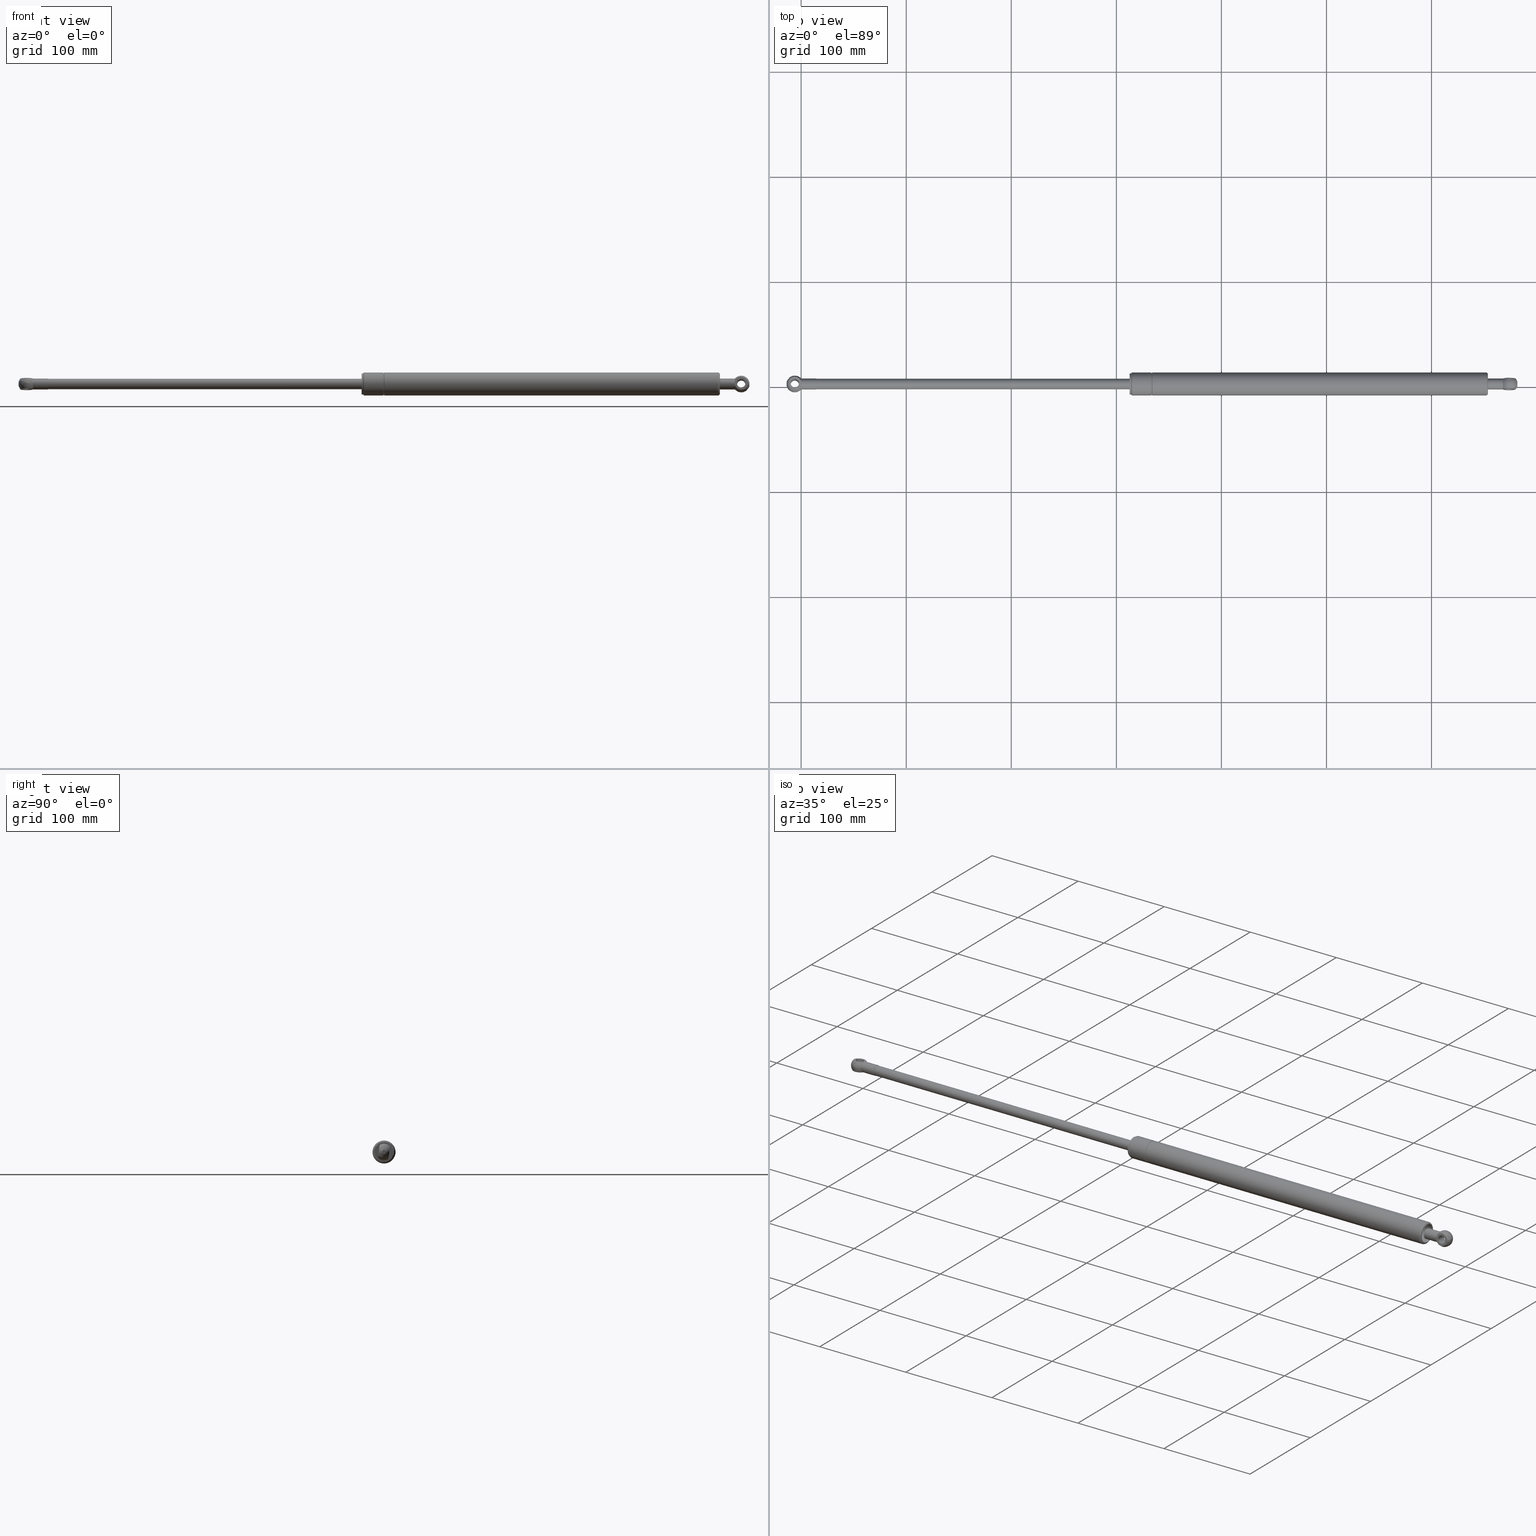
[diagram: canonical four-view strip — front | top / right | iso, engineering-drawing reading convention]
A machine part, canonical four-view strip (front | top / right | iso — engineering-drawing reading convention). The complete STEP part file that produces these views, byte-faithful:
ISO-10303-21;
HEADER;
/* Generated by software containing ST-Developer
 * from STEP Tools, Inc. (www.steptools.com) 
 */

FILE_DESCRIPTION(
/* description */ (''),
/* implementation_level */ '2;1');

FILE_NAME(
/* name */ '\\\\SYNOLOGYNAS\\web\\db2\\SB-680-H\\\X2\B3C4BA74\X0\\\DR_
SB-680-H.stp',
/* time_stamp */ '2023-11-29T15:08:19+09:00',
/* author */ ('user'),
/* organization */ (''),
/* preprocessor_version */ 'ST-DEVELOPER v15.6',
/* originating_system */ 'Autodesk Inventor 2015',
/* authorisation */ '');

FILE_SCHEMA (('AUTOMOTIVE_DESIGN { 1 0 10303 214 3 1 1 }'));
ENDSEC;

DATA;
#10=MECHANICAL_DESIGN_GEOMETRIC_PRESENTATION_REPRESENTATION('',(#42,#45,
#43,#44,#46,#47,#48,#49),#798);
#11=ITEM_DEFINED_TRANSFORMATION($,$,#427,#501);
#12=ITEM_DEFINED_TRANSFORMATION($,$,#451,#502);
#13=ITEM_DEFINED_TRANSFORMATION($,$,#475,#503);
#14=ITEM_DEFINED_TRANSFORMATION($,$,#427,#504);
#15=ITEM_DEFINED_TRANSFORMATION($,$,#487,#505);
#16=(
REPRESENTATION_RELATIONSHIP($,$,#820,#824)
REPRESENTATION_RELATIONSHIP_WITH_TRANSFORMATION(#11)
SHAPE_REPRESENTATION_RELATIONSHIP()
);
#17=(
REPRESENTATION_RELATIONSHIP($,$,#821,#824)
REPRESENTATION_RELATIONSHIP_WITH_TRANSFORMATION(#12)
SHAPE_REPRESENTATION_RELATIONSHIP()
);
#18=(
REPRESENTATION_RELATIONSHIP($,$,#822,#824)
REPRESENTATION_RELATIONSHIP_WITH_TRANSFORMATION(#13)
SHAPE_REPRESENTATION_RELATIONSHIP()
);
#19=(
REPRESENTATION_RELATIONSHIP($,$,#820,#824)
REPRESENTATION_RELATIONSHIP_WITH_TRANSFORMATION(#14)
SHAPE_REPRESENTATION_RELATIONSHIP()
);
#20=(
REPRESENTATION_RELATIONSHIP($,$,#823,#824)
REPRESENTATION_RELATIONSHIP_WITH_TRANSFORMATION(#15)
SHAPE_REPRESENTATION_RELATIONSHIP()
);
#21=CONTEXT_DEPENDENT_SHAPE_REPRESENTATION(#16,#815);
#22=CONTEXT_DEPENDENT_SHAPE_REPRESENTATION(#17,#816);
#23=CONTEXT_DEPENDENT_SHAPE_REPRESENTATION(#18,#817);
#24=CONTEXT_DEPENDENT_SHAPE_REPRESENTATION(#19,#818);
#25=CONTEXT_DEPENDENT_SHAPE_REPRESENTATION(#20,#819);
#26=NEXT_ASSEMBLY_USAGE_OCCURRENCE('DR_SB-680-H HOLE:1',$,$,#830,#826,$);
#27=NEXT_ASSEMBLY_USAGE_OCCURRENCE('DR_SB-680-BASE:1',$,$,#830,#827,$);
#28=NEXT_ASSEMBLY_USAGE_OCCURRENCE('DR_SB-680-SUPPORT:1',$,$,#830,#828,
$);
#29=NEXT_ASSEMBLY_USAGE_OCCURRENCE('DR_SB-680-H HOLE:2',$,$,#830,#826,$);
#30=NEXT_ASSEMBLY_USAGE_OCCURRENCE('DR_SB-680-RING:1',$,$,#830,#829,$);
#31=TOROIDAL_SURFACE('',#459,11.,0.5);
#32=TOROIDAL_SURFACE('',#462,11.,1.);
#33=TOROIDAL_SURFACE('',#467,9.00000000000001,2.);
#34=SHAPE_REPRESENTATION_RELATIONSHIP('SRR','None',#820,#38);
#35=SHAPE_REPRESENTATION_RELATIONSHIP('SRR','None',#821,#39);
#36=SHAPE_REPRESENTATION_RELATIONSHIP('SRR','None',#822,#40);
#37=SHAPE_REPRESENTATION_RELATIONSHIP('SRR','None',#823,#41);
#38=ADVANCED_BREP_SHAPE_REPRESENTATION($,(#50),#793);
#39=ADVANCED_BREP_SHAPE_REPRESENTATION($,(#51,#52),#794);
#40=ADVANCED_BREP_SHAPE_REPRESENTATION($,(#53),#795);
#41=ADVANCED_BREP_SHAPE_REPRESENTATION($,(#54),#796);
#42=STYLED_ITEM('',(#849),#50);
#43=STYLED_ITEM('',(#850),#51);
#44=STYLED_ITEM('',(#850),#52);
#45=STYLED_ITEM('',(#852),#413);
#46=STYLED_ITEM('',(#851),#53);
#47=STYLED_ITEM('',(#850),#417);
#48=STYLED_ITEM('',(#850),#418);
#49=STYLED_ITEM('',(#851),#54);
#50=MANIFOLD_SOLID_BREP('\X2\C194B9ACB4DC\X0\1',#422);
#51=MANIFOLD_SOLID_BREP('\X2\C194B9ACB4DC\X0\1',#423);
#52=MANIFOLD_SOLID_BREP('\X2\C194B9ACB4DC\X0\1',#424);
#53=MANIFOLD_SOLID_BREP('\X2\C194B9ACB4DC\X0\1',#425);
#54=MANIFOLD_SOLID_BREP('\X2\C194B9ACB4DC\X0\1',#426);
#55=SPHERICAL_SURFACE('',#446,8.);
#56=B_SPLINE_CURVE_WITH_KNOTS('',3,(#677,#678,#679,#680,#681,#682),
 .UNSPECIFIED.,.F.,.F.,(4,2,4),(2.41667495412591,2.57738882372164,2.73810269331737),
 .UNSPECIFIED.);
#57=B_SPLINE_CURVE_WITH_KNOTS('',3,(#687,#688,#689,#690,#691,#692),
 .UNSPECIFIED.,.F.,.F.,(4,2,4),(0.698415738311486,0.859129607907215,1.01984347750294),
 .UNSPECIFIED.);
#58=PLANE('',#432);
#59=PLANE('',#445);
#60=PLANE('',#449);
#61=PLANE('',#450);
#62=PLANE('',#455);
#63=PLANE('',#458);
#64=PLANE('',#474);
#65=PLANE('',#481);
#66=PLANE('',#482);
#67=PLANE('',#486);
#68=PLANE('',#491);
#69=PLANE('',#495);
#70=PLANE('',#499);
#71=FACE_BOUND('',#150,.T.);
#72=FACE_BOUND('',#155,.T.);
#73=FACE_BOUND('',#157,.T.);
#74=FACE_BOUND('',#159,.T.);
#75=FACE_BOUND('',#160,.T.);
#76=FACE_BOUND('',#161,.T.);
#77=FACE_BOUND('',#163,.T.);
#78=FACE_BOUND('',#165,.T.);
#79=FACE_BOUND('',#167,.T.);
#80=FACE_BOUND('',#170,.T.);
#81=FACE_BOUND('',#173,.T.);
#82=FACE_BOUND('',#175,.T.);
#83=FACE_BOUND('',#177,.T.);
#84=FACE_BOUND('',#179,.T.);
#85=FACE_BOUND('',#181,.T.);
#86=FACE_BOUND('',#183,.T.);
#87=FACE_BOUND('',#185,.T.);
#88=FACE_BOUND('',#187,.T.);
#89=FACE_BOUND('',#189,.T.);
#90=FACE_BOUND('',#191,.T.);
#91=FACE_BOUND('',#195,.T.);
#92=FACE_BOUND('',#197,.T.);
#93=FACE_BOUND('',#199,.T.);
#94=FACE_BOUND('',#201,.T.);
#95=FACE_BOUND('',#203,.T.);
#96=FACE_BOUND('',#205,.T.);
#97=FACE_BOUND('',#207,.T.);
#98=FACE_BOUND('',#209,.T.);
#99=CYLINDRICAL_SURFACE('',#430,3.567);
#100=CYLINDRICAL_SURFACE('',#434,6.2449979983984);
#101=CYLINDRICAL_SURFACE('',#436,6.2449979983984);
#102=CYLINDRICAL_SURFACE('',#438,5.25);
#103=CYLINDRICAL_SURFACE('',#442,4.);
#104=CYLINDRICAL_SURFACE('',#456,4.);
#105=CYLINDRICAL_SURFACE('',#465,10.);
#106=CYLINDRICAL_SURFACE('',#470,11.);
#107=CYLINDRICAL_SURFACE('',#471,9.);
#108=CYLINDRICAL_SURFACE('',#473,11.);
#109=CYLINDRICAL_SURFACE('',#479,4.);
#110=CYLINDRICAL_SURFACE('',#484,5.00000000000002);
#111=CYLINDRICAL_SURFACE('',#488,9.);
#112=CYLINDRICAL_SURFACE('',#493,6.5);
#113=CYLINDRICAL_SURFACE('',#497,5.);
#114=FACE_OUTER_BOUND('',#148,.T.);
#115=FACE_OUTER_BOUND('',#149,.T.);
#116=FACE_OUTER_BOUND('',#151,.T.);
#117=FACE_OUTER_BOUND('',#152,.T.);
#118=FACE_OUTER_BOUND('',#153,.T.);
#119=FACE_OUTER_BOUND('',#154,.T.);
#120=FACE_OUTER_BOUND('',#156,.T.);
#121=FACE_OUTER_BOUND('',#158,.T.);
#122=FACE_OUTER_BOUND('',#162,.T.);
#123=FACE_OUTER_BOUND('',#164,.T.);
#124=FACE_OUTER_BOUND('',#166,.T.);
#125=FACE_OUTER_BOUND('',#168,.T.);
#126=FACE_OUTER_BOUND('',#169,.T.);
#127=FACE_OUTER_BOUND('',#171,.T.);
#128=FACE_OUTER_BOUND('',#172,.T.);
#129=FACE_OUTER_BOUND('',#174,.T.);
#130=FACE_OUTER_BOUND('',#176,.T.);
#131=FACE_OUTER_BOUND('',#178,.T.);
#132=FACE_OUTER_BOUND('',#180,.T.);
#133=FACE_OUTER_BOUND('',#182,.T.);
#134=FACE_OUTER_BOUND('',#184,.T.);
#135=FACE_OUTER_BOUND('',#186,.T.);
#136=FACE_OUTER_BOUND('',#188,.T.);
#137=FACE_OUTER_BOUND('',#190,.T.);
#138=FACE_OUTER_BOUND('',#192,.T.);
#139=FACE_OUTER_BOUND('',#193,.T.);
#140=FACE_OUTER_BOUND('',#194,.T.);
#141=FACE_OUTER_BOUND('',#196,.T.);
#142=FACE_OUTER_BOUND('',#198,.T.);
#143=FACE_OUTER_BOUND('',#200,.T.);
#144=FACE_OUTER_BOUND('',#202,.T.);
#145=FACE_OUTER_BOUND('',#204,.T.);
#146=FACE_OUTER_BOUND('',#206,.T.);
#147=FACE_OUTER_BOUND('',#208,.T.);
#148=EDGE_LOOP('',(#312));
#149=EDGE_LOOP('',(#313));
#150=EDGE_LOOP('',(#314));
#151=EDGE_LOOP('',(#315));
#152=EDGE_LOOP('',(#316,#317));
#153=EDGE_LOOP('',(#318,#319));
#154=EDGE_LOOP('',(#320,#321,#322,#323));
#155=EDGE_LOOP('',(#324));
#156=EDGE_LOOP('',(#325));
#157=EDGE_LOOP('',(#326));
#158=EDGE_LOOP('',(#327));
#159=EDGE_LOOP('',(#328));
#160=EDGE_LOOP('',(#329));
#161=EDGE_LOOP('',(#330,#331,#332,#333));
#162=EDGE_LOOP('',(#334,#335));
#163=EDGE_LOOP('',(#336));
#164=EDGE_LOOP('',(#337,#338));
#165=EDGE_LOOP('',(#339));
#166=EDGE_LOOP('',(#340));
#167=EDGE_LOOP('',(#341));
#168=EDGE_LOOP('',(#342));
#169=EDGE_LOOP('',(#343));
#170=EDGE_LOOP('',(#344));
#171=EDGE_LOOP('',(#345));
#172=EDGE_LOOP('',(#346));
#173=EDGE_LOOP('',(#347));
#174=EDGE_LOOP('',(#348));
#175=EDGE_LOOP('',(#349));
#176=EDGE_LOOP('',(#350));
#177=EDGE_LOOP('',(#351));
#178=EDGE_LOOP('',(#352));
#179=EDGE_LOOP('',(#353));
#180=EDGE_LOOP('',(#354));
#181=EDGE_LOOP('',(#355));
#182=EDGE_LOOP('',(#356));
#183=EDGE_LOOP('',(#357));
#184=EDGE_LOOP('',(#358));
#185=EDGE_LOOP('',(#359));
#186=EDGE_LOOP('',(#360));
#187=EDGE_LOOP('',(#361));
#188=EDGE_LOOP('',(#362));
#189=EDGE_LOOP('',(#363));
#190=EDGE_LOOP('',(#364));
#191=EDGE_LOOP('',(#365));
#192=EDGE_LOOP('',(#366));
#193=EDGE_LOOP('',(#367));
#194=EDGE_LOOP('',(#368));
#195=EDGE_LOOP('',(#369));
#196=EDGE_LOOP('',(#370));
#197=EDGE_LOOP('',(#371));
#198=EDGE_LOOP('',(#372));
#199=EDGE_LOOP('',(#373));
#200=EDGE_LOOP('',(#374));
#201=EDGE_LOOP('',(#375));
#202=EDGE_LOOP('',(#376));
#203=EDGE_LOOP('',(#377));
#204=EDGE_LOOP('',(#378));
#205=EDGE_LOOP('',(#379));
#206=EDGE_LOOP('',(#380));
#207=EDGE_LOOP('',(#381));
#208=EDGE_LOOP('',(#382));
#209=EDGE_LOOP('',(#383));
#210=CIRCLE('',#429,3.567);
#211=CIRCLE('',#431,3.567);
#212=CIRCLE('',#433,1.98431348329845);
#213=CIRCLE('',#435,6.2449979983984);
#214=CIRCLE('',#437,6.2449979983984);
#215=CIRCLE('',#439,5.25);
#216=CIRCLE('',#440,5.25);
#217=CIRCLE('',#441,5.25);
#218=CIRCLE('',#443,4.);
#219=CIRCLE('',#444,4.);
#220=CIRCLE('',#447,6.2449979983984);
#221=CIRCLE('',#448,6.2449979983984);
#222=CIRCLE('',#453,3.);
#223=CIRCLE('',#454,4.);
#224=CIRCLE('',#457,4.);
#225=CIRCLE('',#460,11.);
#226=CIRCLE('',#461,11.);
#227=CIRCLE('',#463,11.);
#228=CIRCLE('',#464,10.);
#229=CIRCLE('',#466,10.);
#230=CIRCLE('',#468,9.);
#231=CIRCLE('',#469,11.);
#232=CIRCLE('',#472,9.);
#233=CIRCLE('',#477,4.);
#234=CIRCLE('',#478,3.);
#235=CIRCLE('',#480,4.);
#236=CIRCLE('',#483,5.);
#237=CIRCLE('',#485,5.00000000000003);
#238=CIRCLE('',#489,9.);
#239=CIRCLE('',#490,9.);
#240=CIRCLE('',#492,6.5);
#241=CIRCLE('',#494,6.5);
#242=CIRCLE('',#496,5.);
#243=CIRCLE('',#498,5.);
#244=VERTEX_POINT('',#666);
#245=VERTEX_POINT('',#669);
#246=VERTEX_POINT('',#672);
#247=VERTEX_POINT('',#675);
#248=VERTEX_POINT('',#676);
#249=VERTEX_POINT('',#685);
#250=VERTEX_POINT('',#686);
#251=VERTEX_POINT('',#697);
#252=VERTEX_POINT('',#700);
#253=VERTEX_POINT('',#702);
#254=VERTEX_POINT('',#712);
#255=VERTEX_POINT('',#714);
#256=VERTEX_POINT('',#718);
#257=VERTEX_POINT('',#722);
#258=VERTEX_POINT('',#724);
#259=VERTEX_POINT('',#727);
#260=VERTEX_POINT('',#729);
#261=VERTEX_POINT('',#732);
#262=VERTEX_POINT('',#735);
#263=VERTEX_POINT('',#737);
#264=VERTEX_POINT('',#741);
#265=VERTEX_POINT('',#747);
#266=VERTEX_POINT('',#749);
#267=VERTEX_POINT('',#752);
#268=VERTEX_POINT('',#756);
#269=VERTEX_POINT('',#759);
#270=VERTEX_POINT('',#764);
#271=VERTEX_POINT('',#766);
#272=VERTEX_POINT('',#769);
#273=VERTEX_POINT('',#772);
#274=VERTEX_POINT('',#775);
#275=VERTEX_POINT('',#778);
#276=EDGE_CURVE('',#244,#244,#210,.T.);
#277=EDGE_CURVE('',#245,#245,#211,.T.);
#278=EDGE_CURVE('',#246,#246,#212,.T.);
#279=EDGE_CURVE('',#247,#248,#56,.T.);
#280=EDGE_CURVE('',#247,#248,#213,.T.);
#281=EDGE_CURVE('',#249,#250,#57,.T.);
#282=EDGE_CURVE('',#249,#250,#214,.T.);
#283=EDGE_CURVE('',#249,#248,#215,.T.);
#284=EDGE_CURVE('',#247,#250,#216,.T.);
#285=EDGE_CURVE('',#251,#251,#217,.T.);
#286=EDGE_CURVE('',#252,#252,#218,.T.);
#287=EDGE_CURVE('',#253,#253,#219,.T.);
#288=EDGE_CURVE('',#248,#247,#220,.T.);
#289=EDGE_CURVE('',#250,#249,#221,.T.);
#290=EDGE_CURVE('',#254,#254,#222,.T.);
#291=EDGE_CURVE('',#255,#255,#223,.T.);
#292=EDGE_CURVE('',#256,#256,#224,.T.);
#293=EDGE_CURVE('',#257,#257,#225,.T.);
#294=EDGE_CURVE('',#258,#258,#226,.T.);
#295=EDGE_CURVE('',#259,#259,#227,.T.);
#296=EDGE_CURVE('',#260,#260,#228,.T.);
#297=EDGE_CURVE('',#261,#261,#229,.T.);
#298=EDGE_CURVE('',#262,#262,#230,.T.);
#299=EDGE_CURVE('',#263,#263,#231,.T.);
#300=EDGE_CURVE('',#264,#264,#232,.T.);
#301=EDGE_CURVE('',#265,#265,#233,.T.);
#302=EDGE_CURVE('',#266,#266,#234,.T.);
#303=EDGE_CURVE('',#267,#267,#235,.T.);
#304=EDGE_CURVE('',#268,#268,#236,.T.);
#305=EDGE_CURVE('',#269,#269,#237,.T.);
#306=EDGE_CURVE('',#270,#270,#238,.T.);
#307=EDGE_CURVE('',#271,#271,#239,.T.);
#308=EDGE_CURVE('',#272,#272,#240,.T.);
#309=EDGE_CURVE('',#273,#273,#241,.T.);
#310=EDGE_CURVE('',#274,#274,#242,.T.);
#311=EDGE_CURVE('',#275,#275,#243,.T.);
#312=ORIENTED_EDGE('',*,*,#276,.T.);
#313=ORIENTED_EDGE('',*,*,#277,.F.);
#314=ORIENTED_EDGE('',*,*,#276,.F.);
#315=ORIENTED_EDGE('',*,*,#278,.F.);
#316=ORIENTED_EDGE('',*,*,#279,.F.);
#317=ORIENTED_EDGE('',*,*,#280,.T.);
#318=ORIENTED_EDGE('',*,*,#281,.F.);
#319=ORIENTED_EDGE('',*,*,#282,.T.);
#320=ORIENTED_EDGE('',*,*,#279,.T.);
#321=ORIENTED_EDGE('',*,*,#283,.F.);
#322=ORIENTED_EDGE('',*,*,#281,.T.);
#323=ORIENTED_EDGE('',*,*,#284,.F.);
#324=ORIENTED_EDGE('',*,*,#285,.F.);
#325=ORIENTED_EDGE('',*,*,#286,.F.);
#326=ORIENTED_EDGE('',*,*,#287,.F.);
#327=ORIENTED_EDGE('',*,*,#285,.T.);
#328=ORIENTED_EDGE('',*,*,#277,.T.);
#329=ORIENTED_EDGE('',*,*,#278,.T.);
#330=ORIENTED_EDGE('',*,*,#283,.T.);
#331=ORIENTED_EDGE('',*,*,#288,.T.);
#332=ORIENTED_EDGE('',*,*,#284,.T.);
#333=ORIENTED_EDGE('',*,*,#289,.T.);
#334=ORIENTED_EDGE('',*,*,#288,.F.);
#335=ORIENTED_EDGE('',*,*,#280,.F.);
#336=ORIENTED_EDGE('',*,*,#286,.T.);
#337=ORIENTED_EDGE('',*,*,#289,.F.);
#338=ORIENTED_EDGE('',*,*,#282,.F.);
#339=ORIENTED_EDGE('',*,*,#287,.T.);
#340=ORIENTED_EDGE('',*,*,#290,.T.);
#341=ORIENTED_EDGE('',*,*,#291,.T.);
#342=ORIENTED_EDGE('',*,*,#290,.F.);
#343=ORIENTED_EDGE('',*,*,#292,.F.);
#344=ORIENTED_EDGE('',*,*,#291,.F.);
#345=ORIENTED_EDGE('',*,*,#292,.T.);
#346=ORIENTED_EDGE('',*,*,#293,.T.);
#347=ORIENTED_EDGE('',*,*,#294,.F.);
#348=ORIENTED_EDGE('',*,*,#295,.T.);
#349=ORIENTED_EDGE('',*,*,#296,.T.);
#350=ORIENTED_EDGE('',*,*,#297,.F.);
#351=ORIENTED_EDGE('',*,*,#296,.F.);
#352=ORIENTED_EDGE('',*,*,#298,.T.);
#353=ORIENTED_EDGE('',*,*,#299,.T.);
#354=ORIENTED_EDGE('',*,*,#293,.F.);
#355=ORIENTED_EDGE('',*,*,#299,.F.);
#356=ORIENTED_EDGE('',*,*,#298,.F.);
#357=ORIENTED_EDGE('',*,*,#300,.F.);
#358=ORIENTED_EDGE('',*,*,#295,.F.);
#359=ORIENTED_EDGE('',*,*,#294,.T.);
#360=ORIENTED_EDGE('',*,*,#297,.T.);
#361=ORIENTED_EDGE('',*,*,#300,.T.);
#362=ORIENTED_EDGE('',*,*,#301,.T.);
#363=ORIENTED_EDGE('',*,*,#302,.T.);
#364=ORIENTED_EDGE('',*,*,#303,.F.);
#365=ORIENTED_EDGE('',*,*,#301,.F.);
#366=ORIENTED_EDGE('',*,*,#302,.F.);
#367=ORIENTED_EDGE('',*,*,#304,.F.);
#368=ORIENTED_EDGE('',*,*,#305,.F.);
#369=ORIENTED_EDGE('',*,*,#304,.T.);
#370=ORIENTED_EDGE('',*,*,#305,.T.);
#371=ORIENTED_EDGE('',*,*,#303,.T.);
#372=ORIENTED_EDGE('',*,*,#306,.F.);
#373=ORIENTED_EDGE('',*,*,#307,.T.);
#374=ORIENTED_EDGE('',*,*,#306,.T.);
#375=ORIENTED_EDGE('',*,*,#308,.F.);
#376=ORIENTED_EDGE('',*,*,#309,.F.);
#377=ORIENTED_EDGE('',*,*,#308,.T.);
#378=ORIENTED_EDGE('',*,*,#309,.T.);
#379=ORIENTED_EDGE('',*,*,#310,.F.);
#380=ORIENTED_EDGE('',*,*,#311,.F.);
#381=ORIENTED_EDGE('',*,*,#310,.T.);
#382=ORIENTED_EDGE('',*,*,#307,.F.);
#383=ORIENTED_EDGE('',*,*,#311,.T.);
#384=CONICAL_SURFACE('',#428,1.7835,59.);
#385=CONICAL_SURFACE('',#452,3.5,44.9999999999996);
#386=CONICAL_SURFACE('',#476,3.5,45.);
#387=ADVANCED_FACE('',(#114),#384,.F.);
#388=ADVANCED_FACE('',(#115,#71),#99,.F.);
#389=ADVANCED_FACE('',(#116),#58,.F.);
#390=ADVANCED_FACE('',(#117),#100,.F.);
#391=ADVANCED_FACE('',(#118),#101,.F.);
#392=ADVANCED_FACE('',(#119,#72),#102,.T.);
#393=ADVANCED_FACE('',(#120,#73),#103,.F.);
#394=ADVANCED_FACE('',(#121,#74),#59,.F.);
#395=ADVANCED_FACE('',(#75,#76),#55,.T.);
#396=ADVANCED_FACE('',(#122,#77),#60,.F.);
#397=ADVANCED_FACE('',(#123,#78),#61,.F.);
#398=ADVANCED_FACE('',(#124,#79),#385,.T.);
#399=ADVANCED_FACE('',(#125),#62,.T.);
#400=ADVANCED_FACE('',(#126,#80),#104,.T.);
#401=ADVANCED_FACE('',(#127),#63,.T.);
#402=ADVANCED_FACE('',(#128,#81),#31,.F.);
#403=ADVANCED_FACE('',(#129,#82),#32,.F.);
#404=ADVANCED_FACE('',(#130,#83),#105,.T.);
#405=ADVANCED_FACE('',(#131,#84),#33,.T.);
#406=ADVANCED_FACE('',(#132,#85),#106,.T.);
#407=ADVANCED_FACE('',(#133,#86),#107,.F.);
#408=ADVANCED_FACE('',(#134,#87),#108,.T.);
#409=ADVANCED_FACE('',(#135,#88),#64,.T.);
#410=ADVANCED_FACE('',(#136,#89),#386,.T.);
#411=ADVANCED_FACE('',(#137,#90),#109,.T.);
#412=ADVANCED_FACE('',(#138),#65,.F.);
#413=ADVANCED_FACE('',(#139),#66,.T.);
#414=ADVANCED_FACE('',(#140,#91),#110,.T.);
#415=ADVANCED_FACE('',(#141,#92),#67,.T.);
#416=ADVANCED_FACE('',(#142,#93),#111,.T.);
#417=ADVANCED_FACE('',(#143,#94),#68,.T.);
#418=ADVANCED_FACE('',(#144,#95),#112,.F.);
#419=ADVANCED_FACE('',(#145,#96),#69,.T.);
#420=ADVANCED_FACE('',(#146,#97),#113,.F.);
#421=ADVANCED_FACE('',(#147,#98),#70,.T.);
#422=CLOSED_SHELL('',(#387,#388,#389,#390,#391,#392,#393,#394,#395,#396,
#397));
#423=CLOSED_SHELL('',(#398,#399,#400,#401));
#424=CLOSED_SHELL('',(#402,#403,#404,#405,#406,#407,#408,#409));
#425=CLOSED_SHELL('',(#410,#411,#412,#413,#414,#415));
#426=CLOSED_SHELL('',(#416,#417,#418,#419,#420,#421));
#427=AXIS2_PLACEMENT_3D('placement',#664,#506,#507);
#428=AXIS2_PLACEMENT_3D('',#665,#508,#509);
#429=AXIS2_PLACEMENT_3D('',#667,#510,#511);
#430=AXIS2_PLACEMENT_3D('',#668,#512,#513);
#431=AXIS2_PLACEMENT_3D('',#670,#514,#515);
#432=AXIS2_PLACEMENT_3D('',#671,#516,#517);
#433=AXIS2_PLACEMENT_3D('',#673,#518,#519);
#434=AXIS2_PLACEMENT_3D('',#674,#520,#521);
#435=AXIS2_PLACEMENT_3D('',#683,#522,#523);
#436=AXIS2_PLACEMENT_3D('',#684,#524,#525);
#437=AXIS2_PLACEMENT_3D('',#693,#526,#527);
#438=AXIS2_PLACEMENT_3D('',#694,#528,#529);
#439=AXIS2_PLACEMENT_3D('',#695,#530,#531);
#440=AXIS2_PLACEMENT_3D('',#696,#532,#533);
#441=AXIS2_PLACEMENT_3D('',#698,#534,#535);
#442=AXIS2_PLACEMENT_3D('',#699,#536,#537);
#443=AXIS2_PLACEMENT_3D('',#701,#538,#539);
#444=AXIS2_PLACEMENT_3D('',#703,#540,#541);
#445=AXIS2_PLACEMENT_3D('',#704,#542,#543);
#446=AXIS2_PLACEMENT_3D('',#705,#544,#545);
#447=AXIS2_PLACEMENT_3D('',#706,#546,#547);
#448=AXIS2_PLACEMENT_3D('',#707,#548,#549);
#449=AXIS2_PLACEMENT_3D('',#708,#550,#551);
#450=AXIS2_PLACEMENT_3D('',#709,#552,#553);
#451=AXIS2_PLACEMENT_3D('placement',#710,#554,#555);
#452=AXIS2_PLACEMENT_3D('',#711,#556,#557);
#453=AXIS2_PLACEMENT_3D('',#713,#558,#559);
#454=AXIS2_PLACEMENT_3D('',#715,#560,#561);
#455=AXIS2_PLACEMENT_3D('',#716,#562,#563);
#456=AXIS2_PLACEMENT_3D('',#717,#564,#565);
#457=AXIS2_PLACEMENT_3D('',#719,#566,#567);
#458=AXIS2_PLACEMENT_3D('',#720,#568,#569);
#459=AXIS2_PLACEMENT_3D('',#721,#570,#571);
#460=AXIS2_PLACEMENT_3D('',#723,#572,#573);
#461=AXIS2_PLACEMENT_3D('',#725,#574,#575);
#462=AXIS2_PLACEMENT_3D('',#726,#576,#577);
#463=AXIS2_PLACEMENT_3D('',#728,#578,#579);
#464=AXIS2_PLACEMENT_3D('',#730,#580,#581);
#465=AXIS2_PLACEMENT_3D('',#731,#582,#583);
#466=AXIS2_PLACEMENT_3D('',#733,#584,#585);
#467=AXIS2_PLACEMENT_3D('',#734,#586,#587);
#468=AXIS2_PLACEMENT_3D('',#736,#588,#589);
#469=AXIS2_PLACEMENT_3D('',#738,#590,#591);
#470=AXIS2_PLACEMENT_3D('',#739,#592,#593);
#471=AXIS2_PLACEMENT_3D('',#740,#594,#595);
#472=AXIS2_PLACEMENT_3D('',#742,#596,#597);
#473=AXIS2_PLACEMENT_3D('',#743,#598,#599);
#474=AXIS2_PLACEMENT_3D('',#744,#600,#601);
#475=AXIS2_PLACEMENT_3D('placement',#745,#602,#603);
#476=AXIS2_PLACEMENT_3D('',#746,#604,#605);
#477=AXIS2_PLACEMENT_3D('',#748,#606,#607);
#478=AXIS2_PLACEMENT_3D('',#750,#608,#609);
#479=AXIS2_PLACEMENT_3D('',#751,#610,#611);
#480=AXIS2_PLACEMENT_3D('',#753,#612,#613);
#481=AXIS2_PLACEMENT_3D('',#754,#614,#615);
#482=AXIS2_PLACEMENT_3D('',#755,#616,#617);
#483=AXIS2_PLACEMENT_3D('',#757,#618,#619);
#484=AXIS2_PLACEMENT_3D('',#758,#620,#621);
#485=AXIS2_PLACEMENT_3D('',#760,#622,#623);
#486=AXIS2_PLACEMENT_3D('',#761,#624,#625);
#487=AXIS2_PLACEMENT_3D('placement',#762,#626,#627);
#488=AXIS2_PLACEMENT_3D('',#763,#628,#629);
#489=AXIS2_PLACEMENT_3D('',#765,#630,#631);
#490=AXIS2_PLACEMENT_3D('',#767,#632,#633);
#491=AXIS2_PLACEMENT_3D('',#768,#634,#635);
#492=AXIS2_PLACEMENT_3D('',#770,#636,#637);
#493=AXIS2_PLACEMENT_3D('',#771,#638,#639);
#494=AXIS2_PLACEMENT_3D('',#773,#640,#641);
#495=AXIS2_PLACEMENT_3D('',#774,#642,#643);
#496=AXIS2_PLACEMENT_3D('',#776,#644,#645);
#497=AXIS2_PLACEMENT_3D('',#777,#646,#647);
#498=AXIS2_PLACEMENT_3D('',#779,#648,#649);
#499=AXIS2_PLACEMENT_3D('',#780,#650,#651);
#500=AXIS2_PLACEMENT_3D('placement',#781,#652,#653);
#501=AXIS2_PLACEMENT_3D('',#782,#654,#655);
#502=AXIS2_PLACEMENT_3D('',#783,#656,#657);
#503=AXIS2_PLACEMENT_3D('',#784,#658,#659);
#504=AXIS2_PLACEMENT_3D('',#785,#660,#661);
#505=AXIS2_PLACEMENT_3D('',#786,#662,#663);
#506=DIRECTION('axis',(0.,0.,1.));
#507=DIRECTION('refdir',(1.,0.,0.));
#508=DIRECTION('center_axis',(0.,-1.,0.));
#509=DIRECTION('ref_axis',(1.,0.,0.));
#510=DIRECTION('center_axis',(0.,-1.,0.));
#511=DIRECTION('ref_axis',(1.,0.,0.));
#512=DIRECTION('center_axis',(0.,-1.,0.));
#513=DIRECTION('ref_axis',(1.,0.,0.));
#514=DIRECTION('center_axis',(0.,1.,0.));
#515=DIRECTION('ref_axis',(1.,0.,0.));
#516=DIRECTION('center_axis',(0.,-1.,0.));
#517=DIRECTION('ref_axis',(0.,0.,-1.));
#518=DIRECTION('center_axis',(0.,-1.,0.));
#519=DIRECTION('ref_axis',(0.,0.,1.));
#520=DIRECTION('center_axis',(1.,0.,0.));
#521=DIRECTION('ref_axis',(0.,0.966589298406967,-0.256330115681182));
#522=DIRECTION('center_axis',(-1.,0.,0.));
#523=DIRECTION('ref_axis',(0.,0.,-1.));
#524=DIRECTION('center_axis',(1.,0.,0.));
#525=DIRECTION('ref_axis',(0.,0.966589298406967,-0.256330115681182));
#526=DIRECTION('center_axis',(1.,0.,0.));
#527=DIRECTION('ref_axis',(0.,0.,1.));
#528=DIRECTION('center_axis',(0.,1.,0.));
#529=DIRECTION('ref_axis',(1.,0.,0.));
#530=DIRECTION('center_axis',(0.,1.,0.));
#531=DIRECTION('ref_axis',(1.,-2.11471052309554E-16,0.));
#532=DIRECTION('center_axis',(0.,1.,0.));
#533=DIRECTION('ref_axis',(1.,-2.11471052309554E-16,0.));
#534=DIRECTION('center_axis',(0.,-1.,0.));
#535=DIRECTION('ref_axis',(1.,0.,0.));
#536=DIRECTION('center_axis',(-1.,0.,0.));
#537=DIRECTION('ref_axis',(0.,-1.,0.));
#538=DIRECTION('center_axis',(-1.,0.,0.));
#539=DIRECTION('ref_axis',(0.,-1.,0.));
#540=DIRECTION('center_axis',(1.,0.,0.));
#541=DIRECTION('ref_axis',(0.,-1.,0.));
#542=DIRECTION('center_axis',(0.,1.,0.));
#543=DIRECTION('ref_axis',(0.,0.,1.));
#544=DIRECTION('center_axis',(6.12323399573677E-17,0.,1.));
#545=DIRECTION('ref_axis',(1.,0.,0.));
#546=DIRECTION('center_axis',(-1.,0.,0.));
#547=DIRECTION('ref_axis',(0.,0.,-1.));
#548=DIRECTION('center_axis',(1.,0.,0.));
#549=DIRECTION('ref_axis',(0.,0.,1.));
#550=DIRECTION('center_axis',(-1.,0.,0.));
#551=DIRECTION('ref_axis',(0.,0.,1.));
#552=DIRECTION('center_axis',(1.,0.,0.));
#553=DIRECTION('ref_axis',(0.,0.,-1.));
#554=DIRECTION('axis',(0.,0.,1.));
#555=DIRECTION('refdir',(1.,0.,0.));
#556=DIRECTION('center_axis',(-1.,0.,1.18952466924127E-16));
#557=DIRECTION('ref_axis',(-5.09796286817682E-17,0.,-1.));
#558=DIRECTION('center_axis',(-1.,0.,1.18952466924126E-16));
#559=DIRECTION('ref_axis',(-1.18952466924126E-16,0.,-1.));
#560=DIRECTION('center_axis',(1.,0.,-1.18952466924126E-16));
#561=DIRECTION('ref_axis',(0.,0.,-1.));
#562=DIRECTION('center_axis',(1.,0.,-1.18952466924126E-16));
#563=DIRECTION('ref_axis',(0.,0.,-1.));
#564=DIRECTION('center_axis',(-1.,0.,1.18952466924126E-16));
#565=DIRECTION('ref_axis',(0.,0.,1.));
#566=DIRECTION('center_axis',(-1.,0.,1.18952466924126E-16));
#567=DIRECTION('ref_axis',(0.,0.,1.));
#568=DIRECTION('center_axis',(-1.,0.,1.18952466924126E-16));
#569=DIRECTION('ref_axis',(0.,0.,1.));
#570=DIRECTION('center_axis',(-1.,0.,0.));
#571=DIRECTION('ref_axis',(0.,0.,1.));
#572=DIRECTION('center_axis',(-1.,0.,0.));
#573=DIRECTION('ref_axis',(0.,0.,1.));
#574=DIRECTION('center_axis',(-1.,0.,0.));
#575=DIRECTION('ref_axis',(0.,0.,1.));
#576=DIRECTION('center_axis',(-1.,0.,0.));
#577=DIRECTION('ref_axis',(0.,0.,1.));
#578=DIRECTION('center_axis',(-1.,0.,0.));
#579=DIRECTION('ref_axis',(0.,0.,1.));
#580=DIRECTION('center_axis',(1.,0.,0.));
#581=DIRECTION('ref_axis',(0.,1.22464679914735E-16,-1.));
#582=DIRECTION('center_axis',(-1.,0.,0.));
#583=DIRECTION('ref_axis',(0.,0.,1.));
#584=DIRECTION('center_axis',(-1.,0.,0.));
#585=DIRECTION('ref_axis',(0.,0.,1.));
#586=DIRECTION('center_axis',(-1.,0.,0.));
#587=DIRECTION('ref_axis',(0.,0.,1.));
#588=DIRECTION('center_axis',(-1.,0.,0.));
#589=DIRECTION('ref_axis',(0.,-1.,0.));
#590=DIRECTION('center_axis',(1.,0.,0.));
#591=DIRECTION('ref_axis',(0.,1.22464679914735E-16,-1.));
#592=DIRECTION('center_axis',(-1.,0.,0.));
#593=DIRECTION('ref_axis',(0.,0.,1.));
#594=DIRECTION('center_axis',(-1.,0.,0.));
#595=DIRECTION('ref_axis',(0.,-1.,0.));
#596=DIRECTION('center_axis',(1.,0.,0.));
#597=DIRECTION('ref_axis',(0.,-1.,0.));
#598=DIRECTION('center_axis',(-1.,0.,0.));
#599=DIRECTION('ref_axis',(0.,0.,1.));
#600=DIRECTION('center_axis',(-1.,0.,0.));
#601=DIRECTION('ref_axis',(0.,0.,1.));
#602=DIRECTION('axis',(0.,0.,1.));
#603=DIRECTION('refdir',(1.,0.,0.));
#604=DIRECTION('center_axis',(1.,0.,0.));
#605=DIRECTION('ref_axis',(0.,0.,-1.));
#606=DIRECTION('center_axis',(-1.,0.,0.));
#607=DIRECTION('ref_axis',(0.,0.,-1.));
#608=DIRECTION('center_axis',(1.,0.,0.));
#609=DIRECTION('ref_axis',(0.,0.,-1.));
#610=DIRECTION('center_axis',(-1.,0.,0.));
#611=DIRECTION('ref_axis',(0.,0.,1.));
#612=DIRECTION('center_axis',(1.,0.,0.));
#613=DIRECTION('ref_axis',(0.,0.,1.));
#614=DIRECTION('center_axis',(1.,0.,0.));
#615=DIRECTION('ref_axis',(0.,0.,-1.));
#616=DIRECTION('center_axis',(1.,0.,0.));
#617=DIRECTION('ref_axis',(0.,0.,-1.));
#618=DIRECTION('center_axis',(-1.,0.,0.));
#619=DIRECTION('ref_axis',(0.,0.,1.));
#620=DIRECTION('center_axis',(-1.,0.,0.));
#621=DIRECTION('ref_axis',(0.,0.,1.));
#622=DIRECTION('center_axis',(-1.,0.,0.));
#623=DIRECTION('ref_axis',(0.,0.,1.));
#624=DIRECTION('center_axis',(-1.,0.,0.));
#625=DIRECTION('ref_axis',(0.,0.,1.));
#626=DIRECTION('axis',(0.,0.,1.));
#627=DIRECTION('refdir',(1.,0.,0.));
#628=DIRECTION('center_axis',(-1.,0.,4.93038065763132E-32));
#629=DIRECTION('ref_axis',(0.,0.,1.));
#630=DIRECTION('center_axis',(-1.,0.,4.93038065763132E-32));
#631=DIRECTION('ref_axis',(0.,0.,1.));
#632=DIRECTION('center_axis',(-1.,0.,4.93038065763132E-32));
#633=DIRECTION('ref_axis',(0.,0.,1.));
#634=DIRECTION('center_axis',(-1.,0.,4.93038065763132E-32));
#635=DIRECTION('ref_axis',(4.93038065763132E-32,0.,1.));
#636=DIRECTION('center_axis',(-1.,0.,4.93038065763132E-32));
#637=DIRECTION('ref_axis',(0.,0.,1.));
#638=DIRECTION('center_axis',(-1.,0.,4.93038065763132E-32));
#639=DIRECTION('ref_axis',(0.,0.,1.));
#640=DIRECTION('center_axis',(-1.,0.,4.93038065763132E-32));
#641=DIRECTION('ref_axis',(0.,0.,1.));
#642=DIRECTION('center_axis',(-1.,0.,4.93038065763132E-32));
#643=DIRECTION('ref_axis',(0.,0.,1.));
#644=DIRECTION('center_axis',(-1.,0.,4.93038065763132E-32));
#645=DIRECTION('ref_axis',(0.,0.,1.));
#646=DIRECTION('center_axis',(-1.,0.,4.93038065763132E-32));
#647=DIRECTION('ref_axis',(0.,0.,1.));
#648=DIRECTION('center_axis',(-1.,0.,4.93038065763132E-32));
#649=DIRECTION('ref_axis',(0.,0.,1.));
#650=DIRECTION('center_axis',(1.,0.,-4.93038065763132E-32));
#651=DIRECTION('ref_axis',(0.,0.,-1.));
#652=DIRECTION('axis',(0.,0.,1.));
#653=DIRECTION('refdir',(1.,0.,0.));
#654=DIRECTION('',(-6.2557893648326E-15,-0.989517308900157,0.144414318497135));
#655=DIRECTION('',(2.26161649341158E-17,0.144414318497135,0.989517308900157));
#656=DIRECTION('',(-1.48755503873641E-15,6.93889390390727E-16,-1.));
#657=DIRECTION('',(1.,-5.55396667737659E-15,-1.48755503873642E-15));
#658=DIRECTION('',(-3.67337705680282E-15,-0.511891706088315,0.859049987624698));
#659=DIRECTION('',(1.,-6.56698709579442E-15,3.62948411580531E-16));
#660=DIRECTION('',(-2.53592916353616E-15,-0.144414318497134,-0.989517308900157));
#661=DIRECTION('',(5.89883659202454E-15,0.989517308900157,-0.144414318497134));
#662=DIRECTION('',(-1.57686073894603E-15,6.38378239159468E-16,-1.));
#663=DIRECTION('',(1.,-5.32352695130586E-15,-1.57686073894603E-15));
#664=CARTESIAN_POINT('',(0.,0.,0.));
#665=CARTESIAN_POINT('Origin',(0.,-5.17836508596435,0.));
#666=CARTESIAN_POINT('',(3.567,-6.25,0.));
#667=CARTESIAN_POINT('Origin',(0.,-6.25,0.));
#668=CARTESIAN_POINT('Origin',(0.,-13.25,0.));
#669=CARTESIAN_POINT('',(3.567,-20.25,0.));
#670=CARTESIAN_POINT('Origin',(0.,-20.25,0.));
#671=CARTESIAN_POINT('Origin',(0.,7.75,0.));
#672=CARTESIAN_POINT('',(2.43008315582638E-16,7.75,-1.98431348329845));
#673=CARTESIAN_POINT('Origin',(0.,7.75,0.));
#674=CARTESIAN_POINT('Origin',(8.5,0.,0.));
#675=CARTESIAN_POINT('',(5.,-6.03634823382482,-1.60078105935821));
#676=CARTESIAN_POINT('',(5.,-6.03634823382482,1.60078105935821));
#677=CARTESIAN_POINT('Ctrl Pts',(5.,-6.03634823382482,-1.60078105935821));
#678=CARTESIAN_POINT('Ctrl Pts',(5.16503701177522,-6.17305092672981,-1.08529203976239));
#679=CARTESIAN_POINT('Ctrl Pts',(5.25,-6.2449979983984,-0.53571289865243));
#680=CARTESIAN_POINT('Ctrl Pts',(5.25,-6.2449979983984,0.535712898652428));
#681=CARTESIAN_POINT('Ctrl Pts',(5.16503701177522,-6.17305092672981,1.08529203976239));
#682=CARTESIAN_POINT('Ctrl Pts',(5.,-6.03634823382482,1.60078105935821));
#683=CARTESIAN_POINT('Origin',(5.,0.,0.));
#684=CARTESIAN_POINT('Origin',(-8.5,0.,0.));
#685=CARTESIAN_POINT('',(-5.,-6.03634823382482,1.60078105935821));
#686=CARTESIAN_POINT('',(-5.,-6.03634823382482,-1.60078105935821));
#687=CARTESIAN_POINT('Ctrl Pts',(-5.,-6.03634823382482,1.60078105935821));
#688=CARTESIAN_POINT('Ctrl Pts',(-5.16503701177522,-6.17305092672981,1.08529203976239));
#689=CARTESIAN_POINT('Ctrl Pts',(-5.25,-6.2449979983984,0.53571289865243));
#690=CARTESIAN_POINT('Ctrl Pts',(-5.25,-6.2449979983984,-0.535712898652428));
#691=CARTESIAN_POINT('Ctrl Pts',(-5.16503701177522,-6.17305092672981,-1.08529203976239));
#692=CARTESIAN_POINT('Ctrl Pts',(-5.,-6.03634823382482,-1.60078105935821));
#693=CARTESIAN_POINT('Origin',(-5.,0.,0.));
#694=CARTESIAN_POINT('Origin',(0.,-20.25,0.));
#695=CARTESIAN_POINT('Origin',(0.,-6.03634823382482,0.));
#696=CARTESIAN_POINT('Origin',(0.,-6.03634823382482,0.));
#697=CARTESIAN_POINT('',(-5.25,-20.25,6.42939569552361E-16));
#698=CARTESIAN_POINT('Origin',(0.,-20.25,0.));
#699=CARTESIAN_POINT('Origin',(29.1220236797292,7.80625564189563E-16,-4.30211422042248E-15));
#700=CARTESIAN_POINT('',(5.,4.,-4.79197294008142E-15));
#701=CARTESIAN_POINT('Origin',(5.,7.80625564189563E-16,-4.30211422042248E-15));
#702=CARTESIAN_POINT('',(-5.,2.90766844530622E-16,4.));
#703=CARTESIAN_POINT('Origin',(-5.,7.80625564189563E-16,-4.30211422042248E-15));
#704=CARTESIAN_POINT('Origin',(2.29804174387325E-16,-20.25,8.8112938462314E-17));
#705=CARTESIAN_POINT('Origin',(0.,0.,0.));
#706=CARTESIAN_POINT('Origin',(5.,0.,0.));
#707=CARTESIAN_POINT('Origin',(-5.,0.,0.));
#708=CARTESIAN_POINT('Origin',(5.,0.,0.));
#709=CARTESIAN_POINT('Origin',(-5.,0.,0.));
#710=CARTESIAN_POINT('',(0.,0.,0.));
#711=CARTESIAN_POINT('Origin',(347.498533721188,0.,9.49637194277589E-15));
#712=CARTESIAN_POINT('',(347.998533721188,3.67394039744206E-16,3.00000000000001));
#713=CARTESIAN_POINT('Origin',(347.998533721188,0.,9.43689570931383E-15));
#714=CARTESIAN_POINT('',(346.998533721188,-4.89858719658941E-16,4.00000000000001));
#715=CARTESIAN_POINT('Origin',(346.998533721188,0.,9.55584817623796E-15));
#716=CARTESIAN_POINT('Origin',(347.998533721188,0.,2.00000000000001));
#717=CARTESIAN_POINT('Origin',(344.498533721188,0.,9.85322934354826E-15));
#718=CARTESIAN_POINT('',(340.998533721188,0.,4.00000000000001));
#719=CARTESIAN_POINT('Origin',(340.998533721188,0.,1.02695629777827E-14));
#720=CARTESIAN_POINT('Origin',(340.998533721188,0.,2.00000000000001));
#721=CARTESIAN_POINT('Origin',(21.,0.,0.));
#722=CARTESIAN_POINT('',(21.5,0.,11.));
#723=CARTESIAN_POINT('Origin',(21.5,0.,0.));
#724=CARTESIAN_POINT('',(20.5,0.,11.));
#725=CARTESIAN_POINT('Origin',(20.5,0.,0.));
#726=CARTESIAN_POINT('Origin',(1.,0.,0.));
#727=CARTESIAN_POINT('',(2.,0.,11.));
#728=CARTESIAN_POINT('Origin',(2.,0.,0.));
#729=CARTESIAN_POINT('',(1.,-2.44929359829471E-15,10.));
#730=CARTESIAN_POINT('Origin',(1.,0.,0.));
#731=CARTESIAN_POINT('Origin',(1.,0.,0.));
#732=CARTESIAN_POINT('',(0.,0.,10.));
#733=CARTESIAN_POINT('Origin',(0.,0.,0.));
#734=CARTESIAN_POINT('Origin',(338.998533721188,0.,0.));
#735=CARTESIAN_POINT('',(340.998533721188,9.,-1.10218211923262E-15));
#736=CARTESIAN_POINT('Origin',(340.998533721188,0.,0.));
#737=CARTESIAN_POINT('',(338.998533721188,-2.69422295812418E-15,11.));
#738=CARTESIAN_POINT('Origin',(338.998533721188,0.,0.));
#739=CARTESIAN_POINT('Origin',(181.249266860594,0.,0.));
#740=CARTESIAN_POINT('Origin',(187.5,0.,0.));
#741=CARTESIAN_POINT('',(0.,-9.,0.));
#742=CARTESIAN_POINT('Origin',(0.,0.,0.));
#743=CARTESIAN_POINT('Origin',(11.25,0.,0.));
#744=CARTESIAN_POINT('Origin',(0.,0.,5.));
#745=CARTESIAN_POINT('',(0.,0.,0.));
#746=CARTESIAN_POINT('Origin',(-7.5,0.,0.));
#747=CARTESIAN_POINT('',(-7.,4.89858719658941E-16,4.));
#748=CARTESIAN_POINT('Origin',(-7.,0.,0.));
#749=CARTESIAN_POINT('',(-8.,-3.67394039744206E-16,3.));
#750=CARTESIAN_POINT('Origin',(-8.,0.,0.));
#751=CARTESIAN_POINT('Origin',(3.5979718122907E-32,0.,0.));
#752=CARTESIAN_POINT('',(3.5979718122907E-32,0.,4.));
#753=CARTESIAN_POINT('Origin',(3.5979718122907E-32,0.,0.));
#754=CARTESIAN_POINT('Origin',(-8.,0.,-9.8645675837472E-17));
#755=CARTESIAN_POINT('Origin',(298.5,0.,2.5));
#756=CARTESIAN_POINT('',(298.5,0.,5.));
#757=CARTESIAN_POINT('Origin',(298.5,0.,0.));
#758=CARTESIAN_POINT('Origin',(149.25,0.,0.));
#759=CARTESIAN_POINT('',(7.1959436245814E-32,0.,5.00000000000003));
#760=CARTESIAN_POINT('Origin',(0.,0.,0.));
#761=CARTESIAN_POINT('Origin',(3.5979718122907E-32,0.,2.50000000000002));
#762=CARTESIAN_POINT('',(0.,0.,0.));
#763=CARTESIAN_POINT('Origin',(5.,0.,-2.46519032881566E-31));
#764=CARTESIAN_POINT('',(-1.64036226228641E-31,0.,9.));
#765=CARTESIAN_POINT('Origin',(0.,0.,0.));
#766=CARTESIAN_POINT('',(10.,0.,9.));
#767=CARTESIAN_POINT('Origin',(10.,0.,-4.93038065763132E-31));
#768=CARTESIAN_POINT('Origin',(-3.82702124733548E-16,0.,7.75));
#769=CARTESIAN_POINT('',(-7.65404249467096E-16,0.,6.5));
#770=CARTESIAN_POINT('Origin',(0.,0.,0.));
#771=CARTESIAN_POINT('Origin',(0.999999999999999,0.,-4.93038065763132E-32));
#772=CARTESIAN_POINT('',(2.,0.,6.5));
#773=CARTESIAN_POINT('Origin',(2.,0.,-9.86076131526265E-32));
#774=CARTESIAN_POINT('Origin',(2.,0.,5.75));
#775=CARTESIAN_POINT('',(2.,0.,5.));
#776=CARTESIAN_POINT('Origin',(2.,0.,-9.86076131526263E-32));
#777=CARTESIAN_POINT('Origin',(6.,0.,-2.95822839457879E-31));
#778=CARTESIAN_POINT('',(10.,0.,5.));
#779=CARTESIAN_POINT('Origin',(10.,0.,-4.93038065763132E-31));
#780=CARTESIAN_POINT('Origin',(10.,0.,7.));
#781=CARTESIAN_POINT('',(0.,0.,0.));
#782=CARTESIAN_POINT('',(-206.059650591123,2.92307302947066,33.0159605358069));
#783=CARTESIAN_POINT('',(112.690349408877,2.92307302946848,33.015960535807));
#784=CARTESIAN_POINT('',(-185.809650591123,2.92307302947056,33.0159605358069));
#785=CARTESIAN_POINT('',(473.938883130065,2.92307302946645,33.0159605358064));
#786=CARTESIAN_POINT('',(112.690349408877,2.92307302946854,33.015960535807));
#787=UNCERTAINTY_MEASURE_WITH_UNIT(LENGTH_MEASURE(0.01),#799,
'DISTANCE_ACCURACY_VALUE',
'Maximum model space distance between geometric entities at asserted c
onnectivities');
#788=UNCERTAINTY_MEASURE_WITH_UNIT(LENGTH_MEASURE(0.01),#799,
'DISTANCE_ACCURACY_VALUE',
'Maximum model space distance between geometric entities at asserted c
onnectivities');
#789=UNCERTAINTY_MEASURE_WITH_UNIT(LENGTH_MEASURE(0.01),#799,
'DISTANCE_ACCURACY_VALUE',
'Maximum model space distance between geometric entities at asserted c
onnectivities');
#790=UNCERTAINTY_MEASURE_WITH_UNIT(LENGTH_MEASURE(0.01),#799,
'DISTANCE_ACCURACY_VALUE',
'Maximum model space distance between geometric entities at asserted c
onnectivities');
#791=UNCERTAINTY_MEASURE_WITH_UNIT(LENGTH_MEASURE(0.01),#799,
'DISTANCE_ACCURACY_VALUE',
'Maximum model space distance between geometric entities at asserted c
onnectivities');
#792=UNCERTAINTY_MEASURE_WITH_UNIT(LENGTH_MEASURE(1.E-6),#799,
'DISTANCE_ACCURACY_VALUE',
'Maximum model space distance between geometric entities at asserted c
onnectivities');
#793=(
GEOMETRIC_REPRESENTATION_CONTEXT(3)
GLOBAL_UNCERTAINTY_ASSIGNED_CONTEXT((#787))
GLOBAL_UNIT_ASSIGNED_CONTEXT((#799,#802,#800))
REPRESENTATION_CONTEXT('','3D')
);
#794=(
GEOMETRIC_REPRESENTATION_CONTEXT(3)
GLOBAL_UNCERTAINTY_ASSIGNED_CONTEXT((#788))
GLOBAL_UNIT_ASSIGNED_CONTEXT((#799,#802,#800))
REPRESENTATION_CONTEXT('','3D')
);
#795=(
GEOMETRIC_REPRESENTATION_CONTEXT(3)
GLOBAL_UNCERTAINTY_ASSIGNED_CONTEXT((#789))
GLOBAL_UNIT_ASSIGNED_CONTEXT((#799,#802,#800))
REPRESENTATION_CONTEXT('','3D')
);
#796=(
GEOMETRIC_REPRESENTATION_CONTEXT(3)
GLOBAL_UNCERTAINTY_ASSIGNED_CONTEXT((#790))
GLOBAL_UNIT_ASSIGNED_CONTEXT((#799,#802,#800))
REPRESENTATION_CONTEXT('','3D')
);
#797=(
GEOMETRIC_REPRESENTATION_CONTEXT(3)
GLOBAL_UNCERTAINTY_ASSIGNED_CONTEXT((#791))
GLOBAL_UNIT_ASSIGNED_CONTEXT((#799,#802,#800))
REPRESENTATION_CONTEXT('','3D')
);
#798=(
GEOMETRIC_REPRESENTATION_CONTEXT(3)
GLOBAL_UNCERTAINTY_ASSIGNED_CONTEXT((#792))
GLOBAL_UNIT_ASSIGNED_CONTEXT((#799,#802,#800))
REPRESENTATION_CONTEXT('','3D')
);
#799=(
LENGTH_UNIT()
NAMED_UNIT(*)
SI_UNIT(.MILLI.,.METRE.)
);
#800=(
NAMED_UNIT(*)
SI_UNIT($,.STERADIAN.)
SOLID_ANGLE_UNIT()
);
#801=DIMENSIONAL_EXPONENTS(0.,0.,0.,0.,0.,0.,0.);
#802=(
CONVERSION_BASED_UNIT('degree',#804)
NAMED_UNIT(#801)
PLANE_ANGLE_UNIT()
);
#803=(
NAMED_UNIT(*)
PLANE_ANGLE_UNIT()
SI_UNIT($,.RADIAN.)
);
#804=PLANE_ANGLE_MEASURE_WITH_UNIT(PLANE_ANGLE_MEASURE(0.01745329252),#803);
#805=SHAPE_DEFINITION_REPRESENTATION(#810,#820);
#806=SHAPE_DEFINITION_REPRESENTATION(#811,#821);
#807=SHAPE_DEFINITION_REPRESENTATION(#812,#822);
#808=SHAPE_DEFINITION_REPRESENTATION(#813,#823);
#809=SHAPE_DEFINITION_REPRESENTATION(#814,#824);
#810=PRODUCT_DEFINITION_SHAPE('',$,#826);
#811=PRODUCT_DEFINITION_SHAPE('',$,#827);
#812=PRODUCT_DEFINITION_SHAPE('',$,#828);
#813=PRODUCT_DEFINITION_SHAPE('',$,#829);
#814=PRODUCT_DEFINITION_SHAPE('',$,#830);
#815=PRODUCT_DEFINITION_SHAPE($,$,#26);
#816=PRODUCT_DEFINITION_SHAPE($,$,#27);
#817=PRODUCT_DEFINITION_SHAPE($,$,#28);
#818=PRODUCT_DEFINITION_SHAPE($,$,#29);
#819=PRODUCT_DEFINITION_SHAPE($,$,#30);
#820=SHAPE_REPRESENTATION('',(#427),#793);
#821=SHAPE_REPRESENTATION('',(#451),#794);
#822=SHAPE_REPRESENTATION('',(#475),#795);
#823=SHAPE_REPRESENTATION('',(#487),#796);
#824=SHAPE_REPRESENTATION('',(#500,#501,#502,#503,#504,#505),#797);
#825=PRODUCT_DEFINITION_CONTEXT('part definition',#842,'design');
#826=PRODUCT_DEFINITION('DR_SB-680-H HOLE','DR_SB-680-H HOLE',#831,#825);
#827=PRODUCT_DEFINITION('DR_SB-680-BASE','DR_SB-680-BASE',#832,#825);
#828=PRODUCT_DEFINITION('DR_SB-680-SUPPORT','DR_SB-680-SUPPORT',#833,#825);
#829=PRODUCT_DEFINITION('DR_SB-680-RING','DR_SB-680-RING',#834,#825);
#830=PRODUCT_DEFINITION('DR_SB-680-H','DR_SB-680-H',#835,#825);
#831=PRODUCT_DEFINITION_FORMATION('',$,#844);
#832=PRODUCT_DEFINITION_FORMATION('',$,#845);
#833=PRODUCT_DEFINITION_FORMATION('',$,#846);
#834=PRODUCT_DEFINITION_FORMATION('',$,#847);
#835=PRODUCT_DEFINITION_FORMATION('',$,#848);
#836=PRODUCT_RELATED_PRODUCT_CATEGORY('DR_SB-680-H HOLE',
'DR_SB-680-H HOLE',(#844));
#837=PRODUCT_RELATED_PRODUCT_CATEGORY('DR_SB-680-BASE','DR_SB-680-BASE',
(#845));
#838=PRODUCT_RELATED_PRODUCT_CATEGORY('DR_SB-680-SUPPORT',
'DR_SB-680-SUPPORT',(#846));
#839=PRODUCT_RELATED_PRODUCT_CATEGORY('DR_SB-680-RING','DR_SB-680-RING',
(#847));
#840=PRODUCT_RELATED_PRODUCT_CATEGORY('DR_SB-680-H','DR_SB-680-H',(#848));
#841=APPLICATION_PROTOCOL_DEFINITION('international standard',
'automotive_design',2009,#842);
#842=APPLICATION_CONTEXT(
'Core Data for Automotive Mechanical Design Process');
#843=PRODUCT_CONTEXT('part definition',#842,'mechanical');
#844=PRODUCT('DR_SB-680-H HOLE','DR_SB-680-H HOLE',$,(#843));
#845=PRODUCT('DR_SB-680-BASE','DR_SB-680-BASE',$,(#843));
#846=PRODUCT('DR_SB-680-SUPPORT','DR_SB-680-SUPPORT',$,(#843));
#847=PRODUCT('DR_SB-680-RING','DR_SB-680-RING',$,(#843));
#848=PRODUCT('DR_SB-680-H','DR_SB-680-H',$,(#843));
#849=PRESENTATION_STYLE_ASSIGNMENT((#853));
#850=PRESENTATION_STYLE_ASSIGNMENT((#854));
#851=PRESENTATION_STYLE_ASSIGNMENT((#855));
#852=PRESENTATION_STYLE_ASSIGNMENT((#856));
#853=SURFACE_STYLE_USAGE(.BOTH.,#857);
#854=SURFACE_STYLE_USAGE(.BOTH.,#858);
#855=SURFACE_STYLE_USAGE(.BOTH.,#859);
#856=SURFACE_STYLE_USAGE(.BOTH.,#860);
#857=SURFACE_SIDE_STYLE($,(#861));
#858=SURFACE_SIDE_STYLE($,(#862));
#859=SURFACE_SIDE_STYLE($,(#863));
#860=SURFACE_SIDE_STYLE($,(#864));
#861=SURFACE_STYLE_FILL_AREA(#865);
#862=SURFACE_STYLE_FILL_AREA(#866);
#863=SURFACE_STYLE_FILL_AREA(#867);
#864=SURFACE_STYLE_FILL_AREA(#868);
#865=FILL_AREA_STYLE($,(#869));
#866=FILL_AREA_STYLE($,(#870));
#867=FILL_AREA_STYLE($,(#871));
#868=FILL_AREA_STYLE($,(#872));
#869=FILL_AREA_STYLE_COLOUR($,#873);
#870=FILL_AREA_STYLE_COLOUR($,#874);
#871=FILL_AREA_STYLE_COLOUR($,#875);
#872=FILL_AREA_STYLE_COLOUR($,#876);
#873=COLOUR_RGB('',0.352941176470588,0.384313725490196,0.4);
#874=COLOUR_RGB('',0.313725490196078,0.313725490196078,0.313725490196078);
#875=COLOUR_RGB('',0.745098039215686,0.737254901960784,0.729411764705882);
#876=COLOUR_RGB('',0.745098039215686,0.737254901960784,0.729411764705882);
ENDSEC;
END-ISO-10303-21;
